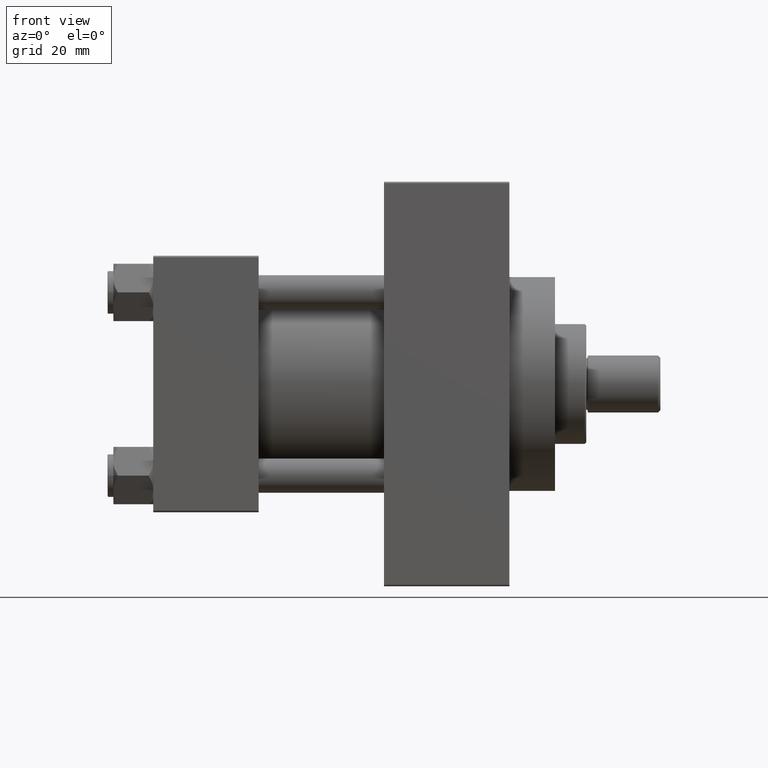
[diagram: clean part render]
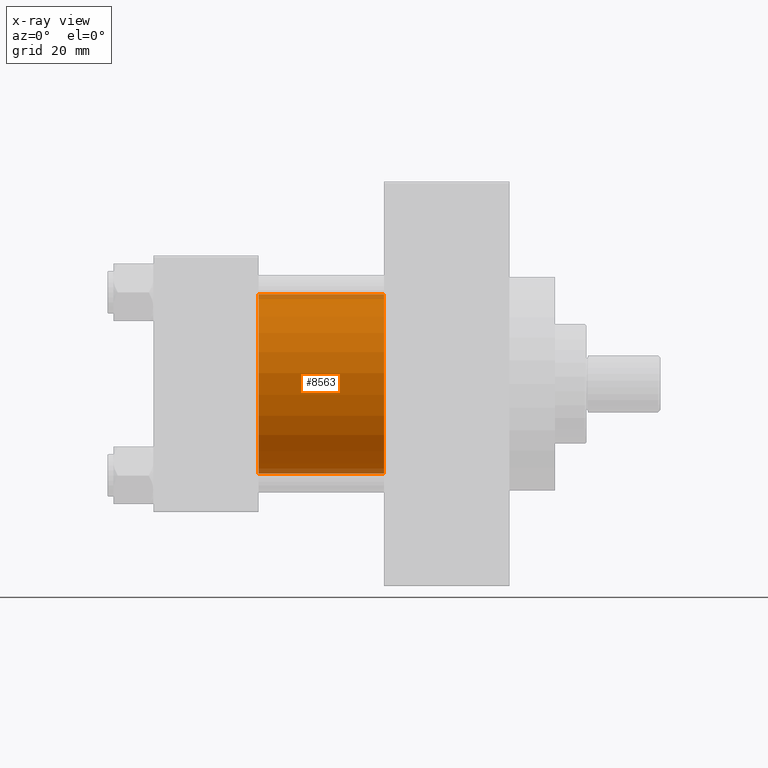
[diagram: x-ray — body ghosted, one internal face saturated and labeled with its STEP entity id]
A machine part, front view, then the same camera in x-ray: the body is ghosted and one INTERNAL B-rep face — a face not visible from any outside direction — is saturated and labeled: STEP entity #8563.
In plain terms, the highlighted cylindrical surface (partial cylindrical patch) has radius 31.5 mm, axis along (-1, -0, -0).
Its self-contained STEP definition (entity closure, byte-faithful):
#222 = DIRECTION ( 'NONE',  ( 0.000000000000000000, 0.000000000000000000, -1.000000000000000000 ) ) ;
#1563 = CIRCLE ( 'NONE', #10076, 31.50000000000000000 ) ;
#3114 = AXIS2_PLACEMENT_3D ( 'NONE', #4526, #23783, #4764 ) ;
#3740 = ORIENTED_EDGE ( 'NONE', *, *, #5595, .T. ) ;
#4374 = EDGE_LOOP ( 'NONE', ( #3740, #41882, #7965, #20048 ) ) ;
#4526 = CARTESIAN_POINT ( 'NONE',  ( 80.99999999999998579, -2.602085213965210642E-15, 0.000000000000000000 ) ) ;
#4673 = EDGE_CURVE ( 'NONE', #32469, #45826, #10130, .T. ) ;
#4764 = DIRECTION ( 'NONE',  ( 0.000000000000000000, 0.000000000000000000, 1.000000000000000000 ) ) ;
#5595 = EDGE_CURVE ( 'NONE', #32469, #43474, #1563, .T. ) ;
#6269 = CARTESIAN_POINT ( 'NONE',  ( 80.99999999999998579, -2.602085213965210642E-15, 31.50000000000000000 ) ) ;
#6880 = EDGE_CURVE ( 'NONE', #43474, #21638, #28176, .T. ) ;
#7906 = CARTESIAN_POINT ( 'NONE',  ( 37.00000000000000000, -2.602085213965210642E-15, 0.000000000000000000 ) ) ;
#7965 = ORIENTED_EDGE ( 'NONE', *, *, #24923, .F. ) ;
#8563 = ADVANCED_FACE ( 'NONE', ( #19690 ), #16309, .F. ) ;
#10076 = AXIS2_PLACEMENT_3D ( 'NONE', #18525, #32482, #222 ) ;
#10130 = LINE ( 'NONE', #6269, #41565 ) ;
#11248 = CARTESIAN_POINT ( 'NONE',  ( 80.99999999999998579, 1.255552203348951850E-15, -31.50000000000000000 ) ) ;
#16309 = CYLINDRICAL_SURFACE ( 'NONE', #3114, 31.50000000000000000 ) ;
#18525 = CARTESIAN_POINT ( 'NONE',  ( 80.99999999999998579, -2.602085213965210642E-15, 0.000000000000000000 ) ) ;
#19690 = FACE_OUTER_BOUND ( 'NONE', #4374, .T. ) ;
#20048 = ORIENTED_EDGE ( 'NONE', *, *, #4673, .F. ) ;
#21638 = VERTEX_POINT ( 'NONE', #35775 ) ;
#22356 = DIRECTION ( 'NONE',  ( 1.000000000000000000, 0.000000000000000000, 0.000000000000000000 ) ) ;
#23783 = DIRECTION ( 'NONE',  ( -1.000000000000000000, -0.000000000000000000, -0.000000000000000000 ) ) ;
#24923 = EDGE_CURVE ( 'NONE', #45826, #21638, #34909, .T. ) ;
#25065 = DIRECTION ( 'NONE',  ( -1.000000000000000000, -0.000000000000000000, -0.000000000000000000 ) ) ;
#26451 = DIRECTION ( 'NONE',  ( 0.000000000000000000, 0.000000000000000000, -1.000000000000000000 ) ) ;
#28176 = LINE ( 'NONE', #34910, #30076 ) ;
#29575 = AXIS2_PLACEMENT_3D ( 'NONE', #7906, #22356, #26451 ) ;
#30076 = VECTOR ( 'NONE', #30825, 1000.000000000000000 ) ;
#30825 = DIRECTION ( 'NONE',  ( -1.000000000000000000, -0.000000000000000000, -0.000000000000000000 ) ) ;
#32469 = VERTEX_POINT ( 'NONE', #45005 ) ;
#32482 = DIRECTION ( 'NONE',  ( 1.000000000000000000, 0.000000000000000000, 0.000000000000000000 ) ) ;
#34909 = CIRCLE ( 'NONE', #29575, 31.50000000000000000 ) ;
#34910 = CARTESIAN_POINT ( 'NONE',  ( 80.99999999999998579, 1.255552203348951850E-15, -31.50000000000000000 ) ) ;
#35775 = CARTESIAN_POINT ( 'NONE',  ( 37.00000000000000000, 1.255552203348951850E-15, -31.50000000000000000 ) ) ;
#38900 = CARTESIAN_POINT ( 'NONE',  ( 37.00000000000000000, -2.602085213965210642E-15, 31.50000000000000000 ) ) ;
#41565 = VECTOR ( 'NONE', #25065, 1000.000000000000000 ) ;
#41882 = ORIENTED_EDGE ( 'NONE', *, *, #6880, .T. ) ;
#43474 = VERTEX_POINT ( 'NONE', #11248 ) ;
#45005 = CARTESIAN_POINT ( 'NONE',  ( 80.99999999999998579, -2.602085213965210642E-15, 31.50000000000000000 ) ) ;
#45826 = VERTEX_POINT ( 'NONE', #38900 ) ;